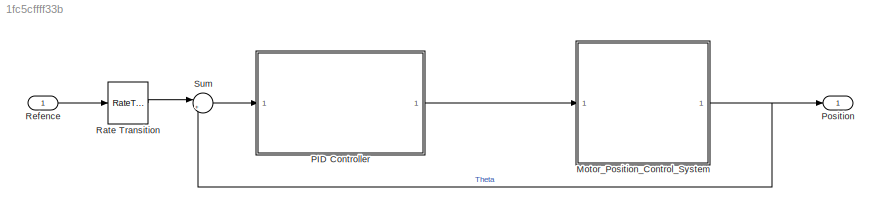
MODEL slx_1fc5cffff33b
KIND model
CONFIG AbsTol = auto
CONFIG EnableMultiTasking = off
CONFIG FixedStep = auto
CONFIG MaxStep = auto
CONFIG MinStep = auto
CONFIG RelTol = 1e-3
CONFIG SampleTimeConstraint = Unconstrained
CONFIG SolverName = ode15s
CONFIG StartTime = 0.0
CONFIG StopTime = 0.2
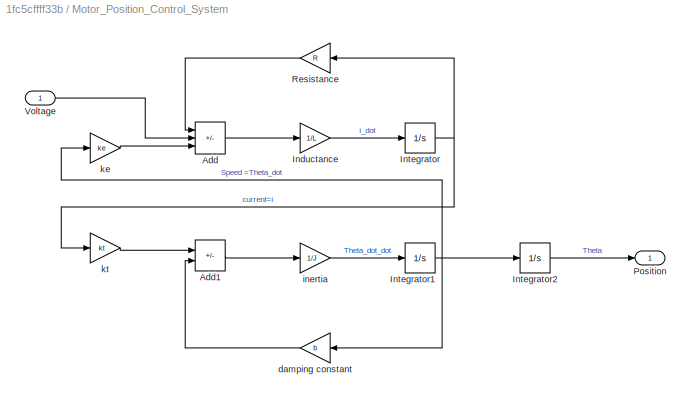
BLOCK [SubSystem] Motor_Position_Control_System
  Ports = [1, 1]
  RequestExecContextInheritance = off
BLOCK [Sum] Motor_Position_Control_System/Add
  IconShape = rectangular
  Inputs = -+-
  Ports = [3, 1]
BLOCK [Sum] Motor_Position_Control_System/Add1
  IconShape = rectangular
  Inputs = +-
  Ports = [2, 1]
BLOCK [Gain] Motor_Position_Control_System/Inductance
  Gain = 1/L
BLOCK [Integrator] Motor_Position_Control_System/Integrator
  Ports = [1, 1]
BLOCK [Integrator] Motor_Position_Control_System/Integrator1
  Ports = [1, 1]
BLOCK [Integrator] Motor_Position_Control_System/Integrator2
  Ports = [1, 1]
BLOCK [Outport] Motor_Position_Control_System/Position
BLOCK [Gain] Motor_Position_Control_System/Resistance
  Gain = R
BLOCK [Inport] Motor_Position_Control_System/Voltage
BLOCK [Gain] Motor_Position_Control_System/damping constant
  Gain = b
BLOCK [Gain] Motor_Position_Control_System/inertia
  Gain = 1/J
BLOCK [Gain] Motor_Position_Control_System/ke
  Gain = ke
BLOCK [Gain] Motor_Position_Control_System/kt
  Gain = kt
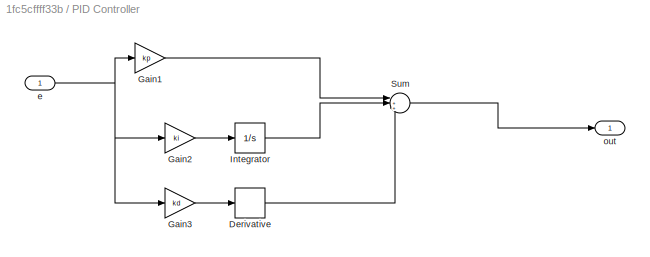
BLOCK [SubSystem] PID Controller
  Ports = [1, 1]
  RequestExecContextInheritance = off
BLOCK [Derivative] PID Controller/Derivative
BLOCK [Gain] PID Controller/Gain1
  Gain = kp
  NameLocation = top
BLOCK [Gain] PID Controller/Gain2
  Gain = ki
  NameLocation = top
BLOCK [Gain] PID Controller/Gain3
  Gain = kd
  NameLocation = top
BLOCK [Integrator] PID Controller/Integrator
  Ports = [1, 1]
BLOCK [Sum] PID Controller/Sum
  Inputs = |+++
  Ports = [3, 1]
BLOCK [Inport] PID Controller/e
BLOCK [Outport] PID Controller/out
BLOCK [Outport] Position
  OutDataTypeStr = double
  PortDimensions = 1
  SampleTime = 0
  SamplingMode = Sample based
  SignalType = real
BLOCK [RateTransition] Rate Transition
BLOCK [Inport] Refence 
  OutDataTypeStr = double
  PortDimensions = 1
  SampleTime = [0,1]
  SamplingMode = Sample based
  SignalType = real
BLOCK [Sum] Sum
  Inputs = |+-
  Ports = [2, 1]
LINE Motor_Position_Control_System/Add1:1 -> Motor_Position_Control_System/inertia:1
LINE Motor_Position_Control_System/Add:1 -> Motor_Position_Control_System/Inductance:1
LINE Motor_Position_Control_System/Inductance:1 -> Motor_Position_Control_System/Integrator:1
NET Motor_Position_Control_System/Integrator1:1 -> Motor_Position_Control_System/Integrator2:1, Motor_Position_Control_System/damping constant:1, Motor_Position_Control_System/ke:1
LINE Motor_Position_Control_System/Integrator2:1 -> Motor_Position_Control_System/Position:1
NET Motor_Position_Control_System/Integrator:1 -> Motor_Position_Control_System/Resistance:1, Motor_Position_Control_System/kt:1
LINE Motor_Position_Control_System/Resistance:1 -> Motor_Position_Control_System/Add:1
LINE Motor_Position_Control_System/Voltage:1 -> Motor_Position_Control_System/Add:2
LINE Motor_Position_Control_System/damping constant:1 -> Motor_Position_Control_System/Add1:2
LINE Motor_Position_Control_System/inertia:1 -> Motor_Position_Control_System/Integrator1:1
LINE Motor_Position_Control_System/ke:1 -> Motor_Position_Control_System/Add:3
LINE Motor_Position_Control_System/kt:1 -> Motor_Position_Control_System/Add1:1
NET Motor_Position_Control_System:1 -> Position:1, Sum:2
LINE PID Controller/Derivative:1 -> PID Controller/Sum:3
LINE PID Controller/Gain1:1 -> PID Controller/Sum:1
LINE PID Controller/Gain2:1 -> PID Controller/Integrator:1
LINE PID Controller/Gain3:1 -> PID Controller/Derivative:1
LINE PID Controller/Integrator:1 -> PID Controller/Sum:2
LINE PID Controller/Sum:1 -> PID Controller/out:1
NET PID Controller/e:1 -> PID Controller/Gain1:1, PID Controller/Gain2:1, PID Controller/Gain3:1
LINE PID Controller:1 -> Motor_Position_Control_System:1
LINE Rate Transition:1 -> Sum:1
LINE Refence :1 -> Rate Transition:1
LINE Sum:1 -> PID Controller:1
note: NET lines group one-source signal fan-out (src -> all destinations, sorted); 1:1 wires keep LINE
